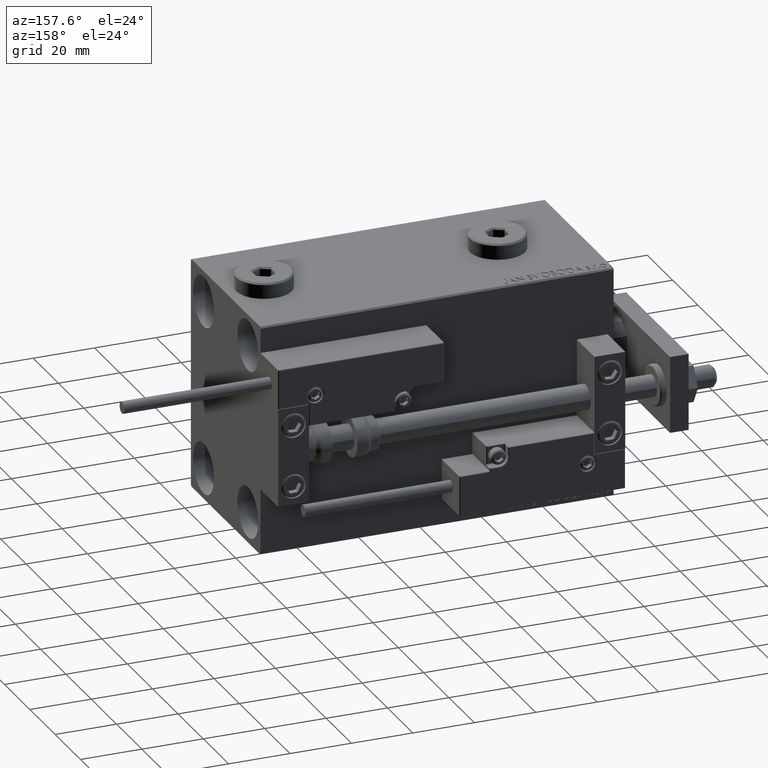
[diagram: clean part render]
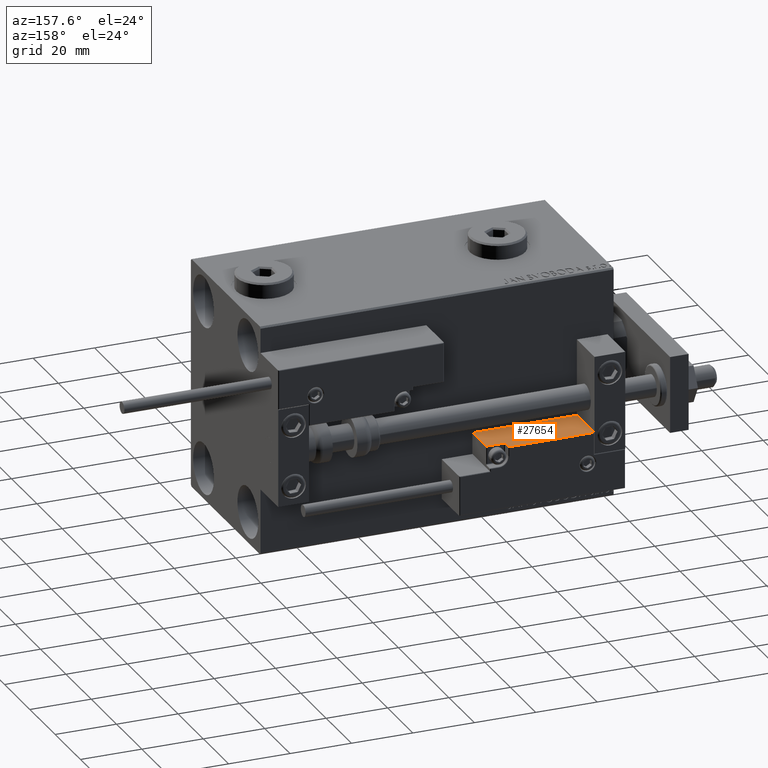
[diagram: same view with one face highlighted and labeled with its STEP entity id]
A machine part, auxiliary view. The second image highlights one B-rep face of the part: STEP entity #27654.
In plain terms, the highlighted planar face has unit normal (-0, -0, -1).
Its self-contained STEP definition (entity closure, byte-faithful):
#362 = DIRECTION ( 'NONE',  ( 0.000000000000000000, -0.000000000000000000, 1.000000000000000000 ) ) ;
#396 = CARTESIAN_POINT ( 'NONE',  ( 16.99999999999999289, 3.252606517456513302E-15, 10.69999999999999929 ) ) ;
#584 = EDGE_CURVE ( 'NONE', #45295, #37967, #3598, .T. ) ;
#1623 = ORIENTED_EDGE ( 'NONE', *, *, #34692, .T. ) ;
#3044 = DIRECTION ( 'NONE',  ( 0.000000000000000000, 0.000000000000000000, 1.000000000000000000 ) ) ;
#3051 = ORIENTED_EDGE ( 'NONE', *, *, #25170, .T. ) ;
#3315 = CARTESIAN_POINT ( 'NONE',  ( -16.99999999999999289, 3.252606517456513302E-15, 0.000000000000000000 ) ) ;
#3598 = LINE ( 'NONE', #35417, #5795 ) ;
#5153 = LINE ( 'NONE', #21080, #32668 ) ;
#5795 = VECTOR ( 'NONE', #51544, 1000.000000000000000 ) ;
#5998 = CARTESIAN_POINT ( 'NONE',  ( 16.99999999999999289, 3.252606517456513302E-15, 0.000000000000000000 ) ) ;
#9093 = CARTESIAN_POINT ( 'NONE',  ( 10.70000000000000107, 3.252606517456513302E-15, 11.29999999999999893 ) ) ;
#9447 = VERTEX_POINT ( 'NONE', #396 ) ;
#10418 = LINE ( 'NONE', #33624, #26397 ) ;
#11028 = VECTOR ( 'NONE', #23937, 1000.000000000000000 ) ;
#11317 = CARTESIAN_POINT ( 'NONE',  ( 10.70000000000000107, 3.252606517456513302E-15, 14.00000000000000000 ) ) ;
#11391 = DIRECTION ( 'NONE',  ( -0.000000000000000000, -1.000000000000000000, -0.000000000000000000 ) ) ;
#11576 = VERTEX_POINT ( 'NONE', #5998 ) ;
#11937 = LINE ( 'NONE', #3315, #11028 ) ;
#11945 = EDGE_CURVE ( 'NONE', #20988, #15845, #15408, .T. ) ;
#12935 = ORIENTED_EDGE ( 'NONE', *, *, #33561, .T. ) ;
#13206 = DIRECTION ( 'NONE',  ( 0.000000000000000000, -0.000000000000000000, 1.000000000000000000 ) ) ;
#13340 = AXIS2_PLACEMENT_3D ( 'NONE', #40839, #17133, #13206 ) ;
#15408 = CIRCLE ( 'NONE', #42028, 0.5999999999999998668 ) ;
#15845 = VERTEX_POINT ( 'NONE', #40286 ) ;
#17133 = DIRECTION ( 'NONE',  ( 0.000000000000000000, 1.000000000000000000, 0.000000000000000000 ) ) ;
#17742 = CARTESIAN_POINT ( 'NONE',  ( -16.99999999999999289, 3.252606517456513302E-15, 0.000000000000000000 ) ) ;
#19305 = VECTOR ( 'NONE', #45692, 1000.000000000000000 ) ;
#20846 = EDGE_CURVE ( 'NONE', #37967, #50082, #10418, .T. ) ;
#20988 = VERTEX_POINT ( 'NONE', #9093 ) ;
#21080 = CARTESIAN_POINT ( 'NONE',  ( 11.00000000000000000, 3.252606517456513302E-15, 10.69999999999999929 ) ) ;
#22887 = CARTESIAN_POINT ( 'NONE',  ( 11.29999999999999893, 3.252606517456513302E-15, 11.29999999999999893 ) ) ;
#23331 = LINE ( 'NONE', #11317, #44871 ) ;
#23937 = DIRECTION ( 'NONE',  ( 1.000000000000000000, 0.000000000000000000, 0.000000000000000000 ) ) ;
#25170 = EDGE_CURVE ( 'NONE', #20988, #45295, #23331, .T. ) ;
#25696 = FACE_OUTER_BOUND ( 'NONE', #27970, .T. ) ;
#26397 = VECTOR ( 'NONE', #42490, 1000.000000000000000 ) ;
#27654 = ADVANCED_FACE ( 'NONE', ( #25696 ), #49138, .F. ) ;
#27965 = CARTESIAN_POINT ( 'NONE',  ( -16.99999999999999289, 3.252606517456513302E-15, 13.70000000000000107 ) ) ;
#27970 = EDGE_LOOP ( 'NONE', ( #29100, #1623, #49586, #3051, #49715, #46520, #12935 ) ) ;
#29100 = ORIENTED_EDGE ( 'NONE', *, *, #30510, .F. ) ;
#29811 = CARTESIAN_POINT ( 'NONE',  ( 16.99999999999999289, 3.252606517456513302E-15, 14.00000000000000000 ) ) ;
#30510 = EDGE_CURVE ( 'NONE', #9447, #11576, #33717, .T. ) ;
#32668 = VECTOR ( 'NONE', #49418, 1000.000000000000000 ) ;
#33561 = EDGE_CURVE ( 'NONE', #50082, #11576, #11937, .T. ) ;
#33624 = CARTESIAN_POINT ( 'NONE',  ( -16.99999999999999289, 3.252606517456513302E-15, 14.00000000000000000 ) ) ;
#33717 = LINE ( 'NONE', #29811, #19305 ) ;
#34692 = EDGE_CURVE ( 'NONE', #9447, #15845, #5153, .T. ) ;
#35417 = CARTESIAN_POINT ( 'NONE',  ( -16.99999999999999289, 3.252606517456513302E-15, 13.70000000000000107 ) ) ;
#37967 = VERTEX_POINT ( 'NONE', #27965 ) ;
#40286 = CARTESIAN_POINT ( 'NONE',  ( 11.29999999999999893, 3.252606517456513302E-15, 10.69999999999999929 ) ) ;
#40839 = CARTESIAN_POINT ( 'NONE',  ( -16.99999999999999289, 3.252606517456513302E-15, 14.00000000000000000 ) ) ;
#42028 = AXIS2_PLACEMENT_3D ( 'NONE', #22887, #11391, #3044 ) ;
#42490 = DIRECTION ( 'NONE',  ( -0.000000000000000000, -0.000000000000000000, -1.000000000000000000 ) ) ;
#44871 = VECTOR ( 'NONE', #362, 1000.000000000000000 ) ;
#45295 = VERTEX_POINT ( 'NONE', #50984 ) ;
#45692 = DIRECTION ( 'NONE',  ( -0.000000000000000000, -0.000000000000000000, -1.000000000000000000 ) ) ;
#46520 = ORIENTED_EDGE ( 'NONE', *, *, #20846, .T. ) ;
#49138 = PLANE ( 'NONE',  #13340 ) ;
#49418 = DIRECTION ( 'NONE',  ( -1.000000000000000000, 0.000000000000000000, -0.000000000000000000 ) ) ;
#49586 = ORIENTED_EDGE ( 'NONE', *, *, #11945, .F. ) ;
#49715 = ORIENTED_EDGE ( 'NONE', *, *, #584, .T. ) ;
#50082 = VERTEX_POINT ( 'NONE', #17742 ) ;
#50984 = CARTESIAN_POINT ( 'NONE',  ( 10.70000000000000107, 3.252606517456513302E-15, 13.70000000000000107 ) ) ;
#51544 = DIRECTION ( 'NONE',  ( -1.000000000000000000, 0.000000000000000000, -0.000000000000000000 ) ) ;